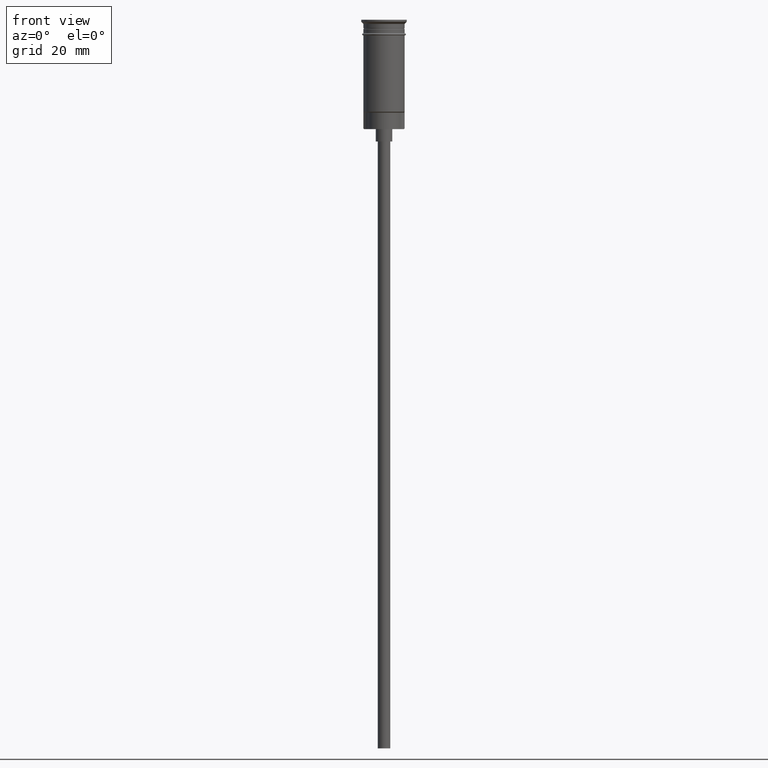
[diagram: clean part render]
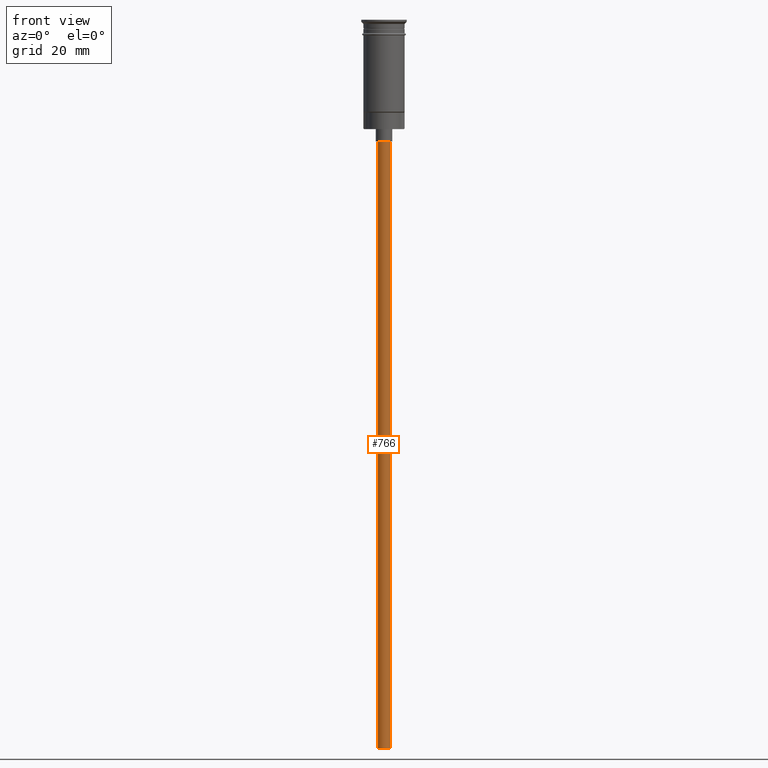
[diagram: same view with one face highlighted and labeled with its STEP entity id]
A machine part, front view. The second image highlights one B-rep face of the part: STEP entity #766.
In plain terms, the highlighted cylindrical surface (edge-blend (fillet) strip) has radius 1.5 mm, axis along (-0, -0, 1).
Its self-contained STEP definition (entity closure, byte-faithful):
#28 = VECTOR ( 'NONE', #536, 1000.000000000000000 ) ;
#102 = CIRCLE ( 'NONE', #1047, 1.500000000000000222 ) ;
#154 = EDGE_CURVE ( 'NONE', #492, #1597, #102, .T. ) ;
#303 = CARTESIAN_POINT ( 'NONE',  ( 1.500000000000000222, 0.000000000000000000, -176.5000000000000000 ) ) ;
#354 = AXIS2_PLACEMENT_3D ( 'NONE', #578, #679, #1564 ) ;
#369 = LINE ( 'NONE', #1482, #1550 ) ;
#423 = CARTESIAN_POINT ( 'NONE',  ( -1.500000000000000222, 1.836970198721030181E-16, -176.5000000000000000 ) ) ;
#457 = ORIENTED_EDGE ( 'NONE', *, *, #1133, .T. ) ;
#472 = VERTEX_POINT ( 'NONE', #615 ) ;
#492 = VERTEX_POINT ( 'NONE', #1325 ) ;
#536 = DIRECTION ( 'NONE',  ( -0.000000000000000000, -0.000000000000000000, 1.000000000000000000 ) ) ;
#578 = CARTESIAN_POINT ( 'NONE',  ( 0.000000000000000000, 0.000000000000000000, -176.5000000000000000 ) ) ;
#613 = CIRCLE ( 'NONE', #1125, 1.500000000000000222 ) ;
#615 = CARTESIAN_POINT ( 'NONE',  ( -1.500000000000000222, 1.836970198721030181E-16, -29.50000000000000000 ) ) ;
#629 = ORIENTED_EDGE ( 'NONE', *, *, #154, .F. ) ;
#679 = DIRECTION ( 'NONE',  ( -0.000000000000000000, -0.000000000000000000, 1.000000000000000000 ) ) ;
#745 = VERTEX_POINT ( 'NONE', #1053 ) ;
#766 = ADVANCED_FACE ( 'NONE', ( #1551 ), #1439, .T. ) ;
#808 = DIRECTION ( 'NONE',  ( 0.000000000000000000, 0.000000000000000000, -1.000000000000000000 ) ) ;
#856 = DIRECTION ( 'NONE',  ( -0.000000000000000000, -0.000000000000000000, 1.000000000000000000 ) ) ;
#1047 = AXIS2_PLACEMENT_3D ( 'NONE', #1078, #808, #1310 ) ;
#1053 = CARTESIAN_POINT ( 'NONE',  ( 1.500000000000000222, 0.000000000000000000, -29.50000000000000000 ) ) ;
#1071 = ORIENTED_EDGE ( 'NONE', *, *, #1579, .T. ) ;
#1078 = CARTESIAN_POINT ( 'NONE',  ( 0.000000000000000000, 0.000000000000000000, -176.5000000000000000 ) ) ;
#1125 = AXIS2_PLACEMENT_3D ( 'NONE', #1161, #1294, #1562 ) ;
#1133 = EDGE_CURVE ( 'NONE', #745, #472, #613, .T. ) ;
#1158 = LINE ( 'NONE', #303, #28 ) ;
#1161 = CARTESIAN_POINT ( 'NONE',  ( 0.000000000000000000, 0.000000000000000000, -29.50000000000000000 ) ) ;
#1294 = DIRECTION ( 'NONE',  ( 0.000000000000000000, 0.000000000000000000, -1.000000000000000000 ) ) ;
#1310 = DIRECTION ( 'NONE',  ( -1.000000000000000000, 0.000000000000000000, 0.000000000000000000 ) ) ;
#1325 = CARTESIAN_POINT ( 'NONE',  ( 1.500000000000000222, 0.000000000000000000, -176.5000000000000000 ) ) ;
#1355 = EDGE_CURVE ( 'NONE', #1597, #472, #369, .T. ) ;
#1439 = CYLINDRICAL_SURFACE ( 'NONE', #354, 1.500000000000000222 ) ;
#1482 = CARTESIAN_POINT ( 'NONE',  ( -1.500000000000000222, 1.836970198721030181E-16, -176.5000000000000000 ) ) ;
#1484 = EDGE_LOOP ( 'NONE', ( #1548, #629, #1071, #457 ) ) ;
#1548 = ORIENTED_EDGE ( 'NONE', *, *, #1355, .F. ) ;
#1550 = VECTOR ( 'NONE', #856, 1000.000000000000000 ) ;
#1551 = FACE_OUTER_BOUND ( 'NONE', #1484, .T. ) ;
#1562 = DIRECTION ( 'NONE',  ( -1.000000000000000000, 0.000000000000000000, 0.000000000000000000 ) ) ;
#1564 = DIRECTION ( 'NONE',  ( 1.000000000000000000, 0.000000000000000000, 0.000000000000000000 ) ) ;
#1579 = EDGE_CURVE ( 'NONE', #492, #745, #1158, .T. ) ;
#1597 = VERTEX_POINT ( 'NONE', #423 ) ;